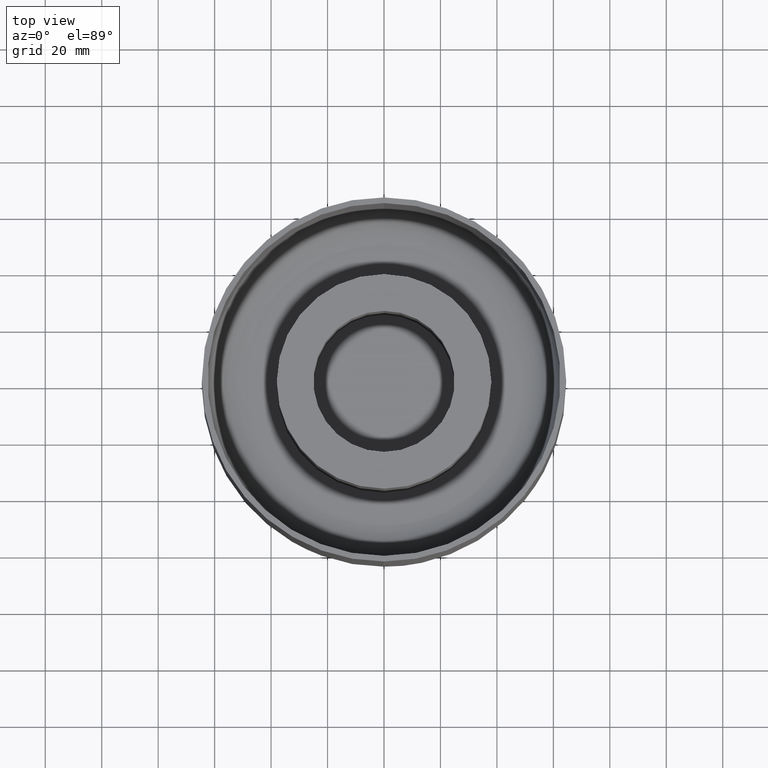
[diagram: clean part render]
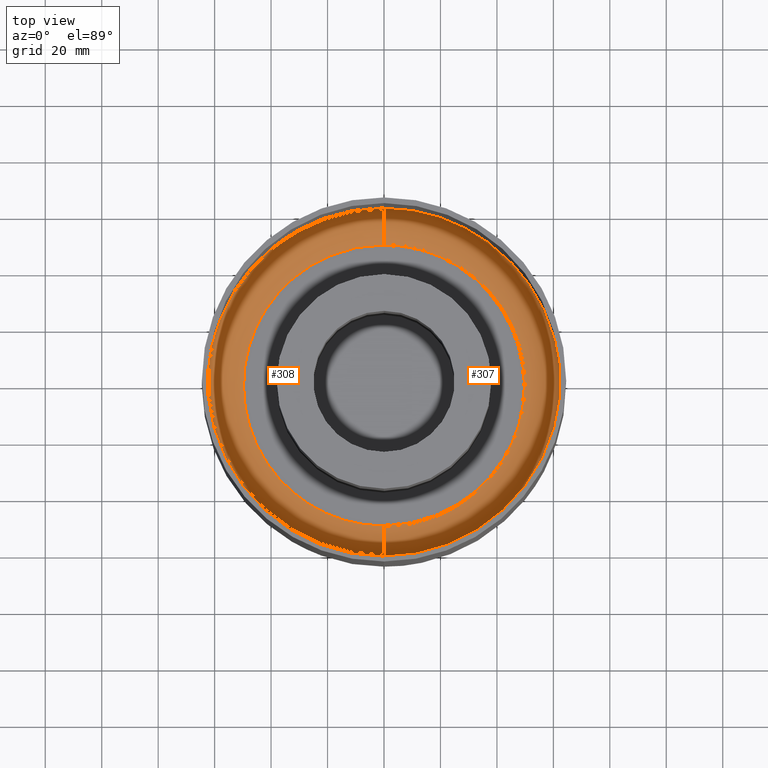
[diagram: same view with one multi-face feature highlighted, each face labeled with its STEP entity id]
A machine part, top view. The highlighted faces form ONE feature: a constant-radius fillet chain: 2 tangent blend faces with common blend radius 12.7281 mm. The faces share edges in the B-rep.
Their STEP definitions:
[1] entity #308 (Torus):
#22=TOROIDAL_SURFACE('',#358,49.7719268501219,12.7280731498783);
#42=FACE_OUTER_BOUND('',#66,.T.);
#66=EDGE_LOOP('',(#235,#236,#237,#238));
#132=B_SPLINE_CURVE_WITH_KNOTS('',3,(#540,#541,#542,#543,#544,#545,#546,
#547,#548,#549),.UNSPECIFIED.,.F.,.F.,(4,1,1,1,1,1,1,4),(0.,0.142857142857143,
0.285714285714286,0.428571428571429,0.571428571428571,0.714285714285714,
0.857142857142857,1.),.UNSPECIFIED.);
#133=B_SPLINE_CURVE_WITH_KNOTS('',3,(#552,#553,#554,#555,#556),
 .UNSPECIFIED.,.F.,.F.,(4,1,4),(0.,0.5,1.),.UNSPECIFIED.);
#135=B_SPLINE_CURVE_WITH_KNOTS('',3,(#568,#569,#570,#571,#572),
 .UNSPECIFIED.,.F.,.F.,(4,1,4),(0.,0.5,1.),.UNSPECIFIED.);
#136=B_SPLINE_CURVE_WITH_KNOTS('',3,(#574,#575,#576,#577,#578,#579,#580,
#581,#582,#583),.UNSPECIFIED.,.F.,.F.,(4,1,1,1,1,1,1,4),(0.,0.142857142857143,
0.285714285714286,0.428571428571429,0.571428571428571,0.714285714285714,
0.857142857142857,1.),.UNSPECIFIED.);
#147=VERTEX_POINT('',#525);
#148=VERTEX_POINT('',#527);
#149=VERTEX_POINT('',#551);
#150=VERTEX_POINT('',#557);
#178=EDGE_CURVE('',#147,#148,#132,.T.);
#179=EDGE_CURVE('',#149,#147,#133,.T.);
#181=EDGE_CURVE('',#148,#150,#135,.T.);
#182=EDGE_CURVE('',#149,#150,#136,.T.);
#235=ORIENTED_EDGE('',*,*,#178,.T.);
#236=ORIENTED_EDGE('',*,*,#181,.T.);
#237=ORIENTED_EDGE('',*,*,#182,.F.);
#238=ORIENTED_EDGE('',*,*,#179,.T.);
#308=ADVANCED_FACE('',(#42),#22,.F.);
#358=AXIS2_PLACEMENT_3D('',#573,#417,#418);
#417=DIRECTION('center_axis',(0.,-1.63087261263545E-15,-1.));
#418=DIRECTION('ref_axis',(0.,-1.,1.59161572810262E-15));
#525=CARTESIAN_POINT('',(-2.01943071804074E-13,62.5000000000002,-107.271926850122));
#527=CARTESIAN_POINT('',(0.,-62.5000000000001,-107.271926850122));
#540=CARTESIAN_POINT('Ctrl Pts',(-2.01943071804074E-13,62.5000000000002,
-107.271926850122));
#541=CARTESIAN_POINT('Ctrl Pts',(-9.41376172392393,62.6365253742048,-107.271926850122));
#542=CARTESIAN_POINT('Ctrl Pts',(-28.0129003174214,58.1693868891732,-107.271926850122));
#543=CARTESIAN_POINT('Ctrl Pts',(-50.5406084722247,40.3156832899944,-107.271926850122));
#544=CARTESIAN_POINT('Ctrl Pts',(-63.0114717191921,14.3765556478745,-107.271926850122));
#545=CARTESIAN_POINT('Ctrl Pts',(-63.011471719192,-14.3765556478746,-107.271926850122));
#546=CARTESIAN_POINT('Ctrl Pts',(-50.5406084722247,-40.3156832899945,-107.271926850122));
#547=CARTESIAN_POINT('Ctrl Pts',(-28.0129003174212,-58.1693868891732,-107.271926850122));
#548=CARTESIAN_POINT('Ctrl Pts',(-9.41376172392372,-62.6365253742047,-107.271926850122));
#549=CARTESIAN_POINT('Ctrl Pts',(-3.65163628501808E-15,-62.5000000000001,
-107.271926850122));
#551=CARTESIAN_POINT('',(-1.6081753276354E-13,49.7719268501219,-120.));
#552=CARTESIAN_POINT('Ctrl Pts',(-1.6081753276354E-13,49.7719268501219,
-120.));
#553=CARTESIAN_POINT('Ctrl Pts',(-1.7335004128046E-13,53.6506525489537,
-119.636034648872));
#554=CARTESIAN_POINT('Ctrl Pts',(-1.92736806304136E-13,59.6507237727653,
-117.150723772765));
#555=CARTESIAN_POINT('Ctrl Pts',(-2.00767067307483E-13,62.1360346488726,
-111.150652548954));
#556=CARTESIAN_POINT('Ctrl Pts',(-2.01943071804074E-13,62.5000000000002,
-107.271926850122));
#557=CARTESIAN_POINT('',(0.,-49.7719268501218,-120.));
#568=CARTESIAN_POINT('Ctrl Pts',(0.,-62.5000000000001,-107.271926850122));
#569=CARTESIAN_POINT('Ctrl Pts',(0.,-62.1360346488725,-111.150652548953));
#570=CARTESIAN_POINT('Ctrl Pts',(0.,-59.6507237727652,-117.150723772765));
#571=CARTESIAN_POINT('Ctrl Pts',(0.,-53.6506525489537,-119.636034648872));
#572=CARTESIAN_POINT('Ctrl Pts',(0.,-49.7719268501218,-120.));
#573=CARTESIAN_POINT('Origin',(0.,5.66370633897373E-14,-107.271926850122));
#574=CARTESIAN_POINT('Ctrl Pts',(-1.6073808950523E-13,49.7719268501219,
-120.));
#575=CARTESIAN_POINT('Ctrl Pts',(-7.49665695852188,49.8806489451314,-120.));
#576=CARTESIAN_POINT('Ctrl Pts',(-22.3080964073352,46.3232395066298,-120.));
#577=CARTESIAN_POINT('Ctrl Pts',(-40.2480554854434,32.1054278339564,-120.));
#578=CARTESIAN_POINT('Ctrl Pts',(-50.1792377780182,11.4487820170034,-120.));
#579=CARTESIAN_POINT('Ctrl Pts',(-50.1792377780182,-11.4487820170035,-120.));
#580=CARTESIAN_POINT('Ctrl Pts',(-40.2480554854433,-32.1054278339565,-120.));
#581=CARTESIAN_POINT('Ctrl Pts',(-22.3080964073351,-46.3232395066298,-120.));
#582=CARTESIAN_POINT('Ctrl Pts',(-7.49665695852171,-49.8806489451314,-120.));
#583=CARTESIAN_POINT('Ctrl Pts',(-2.89156719401884E-15,-49.7719268501218,
-120.));
[2] entity #307 (Torus):
#21=TOROIDAL_SURFACE('',#357,49.7719268501219,12.7280731498783);
#41=FACE_OUTER_BOUND('',#65,.T.);
#65=EDGE_LOOP('',(#231,#232,#233,#234));
#131=B_SPLINE_CURVE_WITH_KNOTS('',3,(#528,#529,#530,#531,#532,#533,#534,
#535,#536,#537),.UNSPECIFIED.,.F.,.F.,(4,1,1,1,1,1,1,4),(0.,0.142857142857143,
0.285714285714286,0.428571428571429,0.571428571428571,0.714285714285714,
0.857142857142857,1.),.UNSPECIFIED.);
#133=B_SPLINE_CURVE_WITH_KNOTS('',3,(#552,#553,#554,#555,#556),
 .UNSPECIFIED.,.F.,.F.,(4,1,4),(0.,0.5,1.),.UNSPECIFIED.);
#134=B_SPLINE_CURVE_WITH_KNOTS('',3,(#558,#559,#560,#561,#562,#563,#564,
#565,#566,#567),.UNSPECIFIED.,.F.,.F.,(4,1,1,1,1,1,1,4),(0.,0.142857142857143,
0.285714285714286,0.428571428571429,0.571428571428571,0.714285714285714,
0.857142857142857,1.),.UNSPECIFIED.);
#135=B_SPLINE_CURVE_WITH_KNOTS('',3,(#568,#569,#570,#571,#572),
 .UNSPECIFIED.,.F.,.F.,(4,1,4),(0.,0.5,1.),.UNSPECIFIED.);
#147=VERTEX_POINT('',#525);
#148=VERTEX_POINT('',#527);
#149=VERTEX_POINT('',#551);
#150=VERTEX_POINT('',#557);
#176=EDGE_CURVE('',#148,#147,#131,.T.);
#179=EDGE_CURVE('',#149,#147,#133,.T.);
#180=EDGE_CURVE('',#150,#149,#134,.T.);
#181=EDGE_CURVE('',#148,#150,#135,.T.);
#231=ORIENTED_EDGE('',*,*,#176,.T.);
#232=ORIENTED_EDGE('',*,*,#179,.F.);
#233=ORIENTED_EDGE('',*,*,#180,.F.);
#234=ORIENTED_EDGE('',*,*,#181,.F.);
#307=ADVANCED_FACE('',(#41),#21,.F.);
#357=AXIS2_PLACEMENT_3D('',#550,#415,#416);
#415=DIRECTION('center_axis',(0.,-1.63087261263545E-15,-1.));
#416=DIRECTION('ref_axis',(0.,-1.,1.59161572810262E-15));
#525=CARTESIAN_POINT('',(-2.01943071804074E-13,62.5000000000002,-107.271926850122));
#527=CARTESIAN_POINT('',(0.,-62.5000000000001,-107.271926850122));
#528=CARTESIAN_POINT('Ctrl Pts',(2.37352689914374E-13,-62.5000000000001,
-107.271926850122));
#529=CARTESIAN_POINT('Ctrl Pts',(9.41376172392396,-62.6365253742047,-107.271926850122));
#530=CARTESIAN_POINT('Ctrl Pts',(28.0129003174215,-58.1693868891731,-107.271926850122));
#531=CARTESIAN_POINT('Ctrl Pts',(50.5406084722248,-40.3156832899942,-107.271926850122));
#532=CARTESIAN_POINT('Ctrl Pts',(63.0114717191921,-14.3765556478743,-107.271926850122));
#533=CARTESIAN_POINT('Ctrl Pts',(63.011471719192,14.3765556478748,-107.271926850122));
#534=CARTESIAN_POINT('Ctrl Pts',(50.5406084722245,40.3156832899947,-107.271926850122));
#535=CARTESIAN_POINT('Ctrl Pts',(28.012900317421,58.1693868891734,-107.271926850122));
#536=CARTESIAN_POINT('Ctrl Pts',(9.4137617239235,62.6365253742049,-107.271926850122));
#537=CARTESIAN_POINT('Ctrl Pts',(-1.98344986268584E-13,62.5000000000002,
-107.271926850122));
#550=CARTESIAN_POINT('Origin',(0.,5.66370633897373E-14,-107.271926850122));
#551=CARTESIAN_POINT('',(-1.6081753276354E-13,49.7719268501219,-120.));
#552=CARTESIAN_POINT('Ctrl Pts',(-1.6081753276354E-13,49.7719268501219,
-120.));
#553=CARTESIAN_POINT('Ctrl Pts',(-1.7335004128046E-13,53.6506525489537,
-119.636034648872));
#554=CARTESIAN_POINT('Ctrl Pts',(-1.92736806304136E-13,59.6507237727653,
-117.150723772765));
#555=CARTESIAN_POINT('Ctrl Pts',(-2.00767067307483E-13,62.1360346488726,
-111.150652548954));
#556=CARTESIAN_POINT('Ctrl Pts',(-2.01943071804074E-13,62.5000000000002,
-107.271926850122));
#557=CARTESIAN_POINT('',(0.,-49.7719268501218,-120.));
#558=CARTESIAN_POINT('Ctrl Pts',(3.17246229286638E-13,-49.7719268501218,
-120.));
#559=CARTESIAN_POINT('Ctrl Pts',(7.49665695852203,-49.8806489451313,-120.));
#560=CARTESIAN_POINT('Ctrl Pts',(22.3080964073354,-46.3232395066296,-120.));
#561=CARTESIAN_POINT('Ctrl Pts',(40.2480554854435,-32.1054278339562,-120.));
#562=CARTESIAN_POINT('Ctrl Pts',(50.1792377780183,-11.4487820170032,-120.));
#563=CARTESIAN_POINT('Ctrl Pts',(50.1792377780182,11.4487820170037,-120.));
#564=CARTESIAN_POINT('Ctrl Pts',(40.2480554854432,32.1054278339566,-120.));
#565=CARTESIAN_POINT('Ctrl Pts',(22.3080964073349,46.3232395066299,-120.));
#566=CARTESIAN_POINT('Ctrl Pts',(7.49665695852156,49.8806489451315,-120.));
#567=CARTESIAN_POINT('Ctrl Pts',(-1.56789034880256E-13,49.7719268501219,
-120.));
#568=CARTESIAN_POINT('Ctrl Pts',(0.,-62.5000000000001,-107.271926850122));
#569=CARTESIAN_POINT('Ctrl Pts',(0.,-62.1360346488725,-111.150652548953));
#570=CARTESIAN_POINT('Ctrl Pts',(0.,-59.6507237727652,-117.150723772765));
#571=CARTESIAN_POINT('Ctrl Pts',(0.,-53.6506525489537,-119.636034648872));
#572=CARTESIAN_POINT('Ctrl Pts',(0.,-49.7719268501218,-120.));